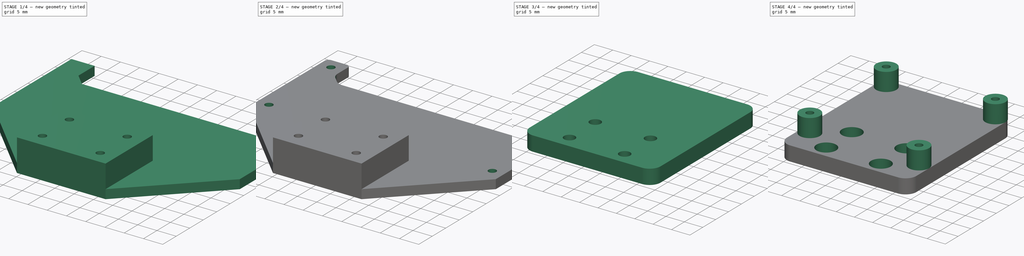
[diagram: build sequence overview — one tinted view per stage of 4, left to right]
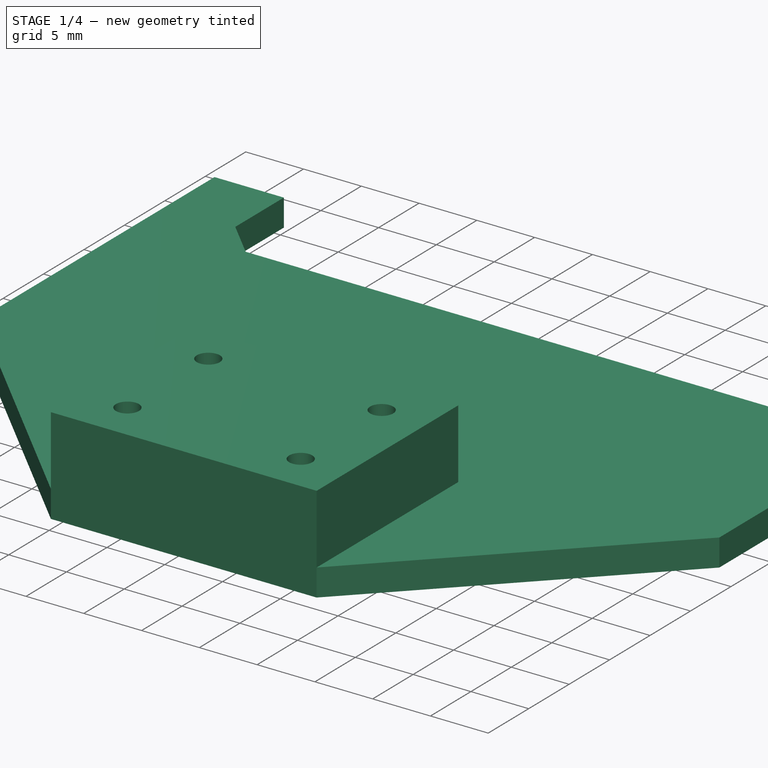
[diagram: stage 1 of 4 — iso view after this stage's code; geometry added in this stage tinted green]
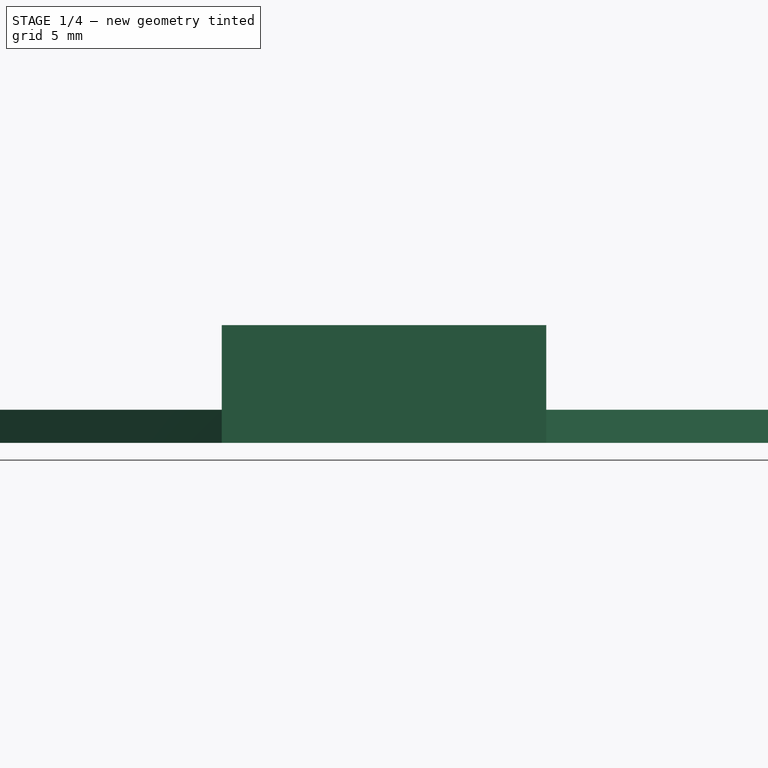
[diagram: stage 1 of 4 — front view after this stage's code; geometry added in this stage tinted green]
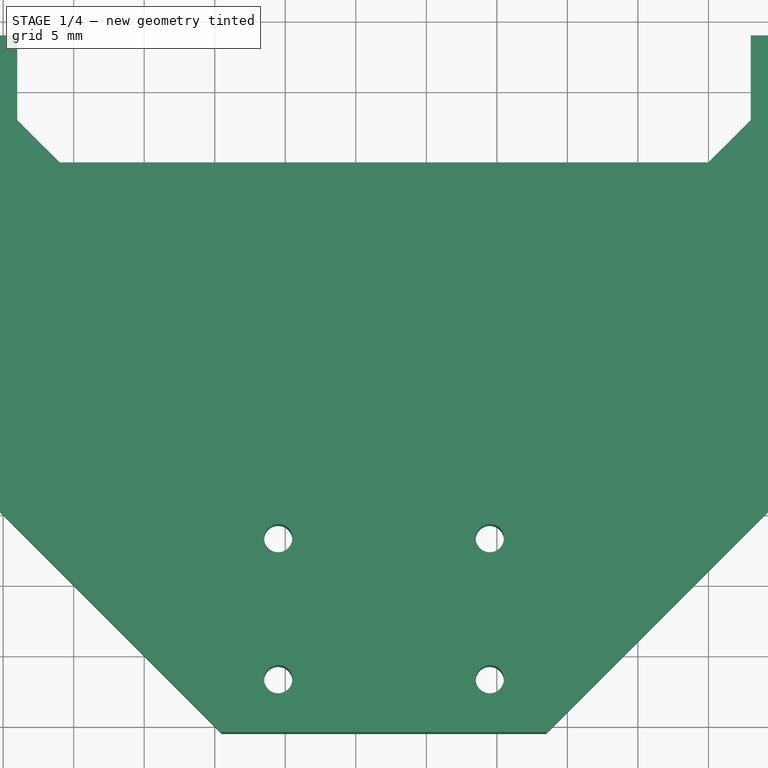
[diagram: stage 1 of 4 — top view after this stage's code; geometry added in this stage tinted green]
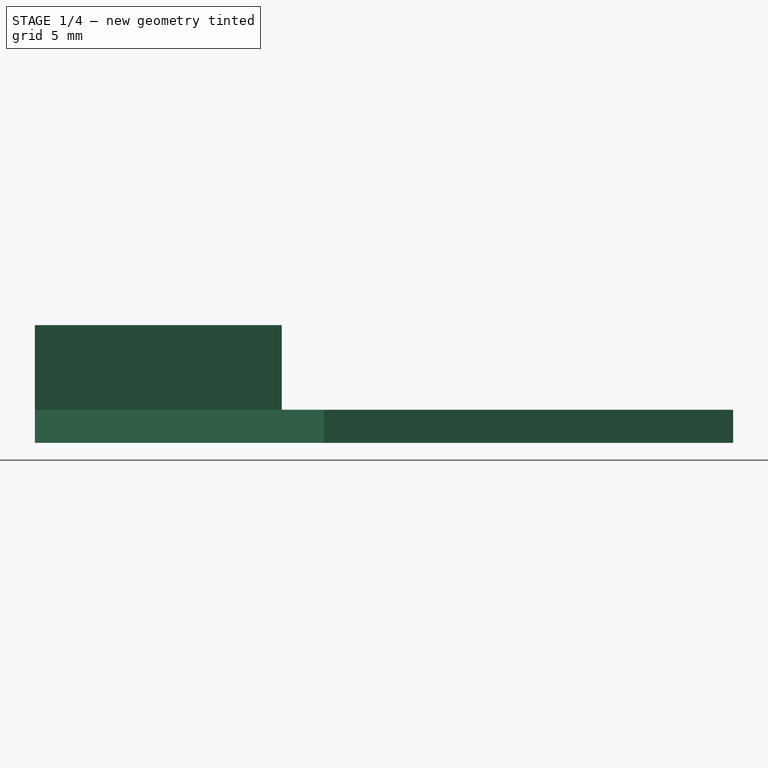
[diagram: stage 1 of 4 — right view after this stage's code; geometry added in this stage tinted green]
FCSTD DOCUMENT  (FreeCAD 0.18.4R)
Label: lensmountbracket
License: All rights reserved
LicenseURL: http://en.wikipedia.org/wiki/All_rights_reserved
objects: Sketcher::SketchObject×9, PartDesign::Fillet×5, PartDesign::Pad×4, PartDesign::Hole×3, PartDesign::Body×2, PartDesign::ShapeBinder×1, PartDesign::Pocket×1
note: 33 computed .brp shape members not serialized (recipe doc carries the construction recipe); baked Part::Feature solids carry a one-line shape summary decoded from their .brp

FEATURE [Sketcher::SketchObject] Sketch  label="basesketch"
  MapMode = 5
  Support = -> [XY_Plane001]
  sketch-geometry (30):
    g0: LineSegment StartX=0 StartY=0 StartZ=0 EndX=0 EndY=29 EndZ=0
    g1: LineSegment StartX=0 StartY=29 StartZ=0 EndX=6 EndY=29 EndZ=0
    g2: LineSegment StartX=6 StartY=29 StartZ=0 EndX=6 EndY=23 EndZ=0
    g3: LineSegment StartX=6 StartY=23 StartZ=0 EndX=9 EndY=20 EndZ=0
    g4: LineSegment StartX=9 StartY=20 StartZ=0 EndX=55 EndY=20 EndZ=0
    g5: LineSegment StartX=55 StartY=20 StartZ=0 EndX=58 EndY=23 EndZ=0
    g6: LineSegment StartX=58 StartY=23 StartZ=0 EndX=58 EndY=29 EndZ=0
    g7: LineSegment StartX=58 StartY=29 StartZ=0 EndX=64 EndY=29 EndZ=0
    g8: LineSegment StartX=64 StartY=29 StartZ=0 EndX=64 EndY=0 EndZ=0
    g9: LineSegment StartX=64 StartY=0 StartZ=0 EndX=43.5 EndY=-20.5 EndZ=0
    g10: LineSegment StartX=43.5 StartY=-20.5 StartZ=0 EndX=20.5 EndY=-20.5 EndZ=0
    g11: LineSegment StartX=20.5 StartY=-20.5 StartZ=0 EndX=0 EndY=0 EndZ=0
    g12: Circle CenterX=3 CenterY=26 CenterZ=0 NormalX=0 NormalY=0 NormalZ=1 AngleXU=0 Radius=3
    g13: Circle CenterX=61 CenterY=26 CenterZ=0 NormalX=0 NormalY=0 NormalZ=1 AngleXU=0 Radius=3
    g14: Circle CenterX=3 CenterY=3 CenterZ=0 NormalX=0 NormalY=0 NormalZ=1 AngleXU=0 Radius=3
    g15: Circle CenterX=61 CenterY=3 CenterZ=0 NormalX=0 NormalY=0 NormalZ=1 AngleXU=0 Radius=3
    g16: Circle CenterX=47 CenterY=17.5 CenterZ=0 NormalX=0 NormalY=0 NormalZ=1 AngleXU=0 Radius=2.8
    g17: Circle CenterX=47 CenterY=-12.5 CenterZ=0 NormalX=0 NormalY=0 NormalZ=1 AngleXU=0 Radius=2.8
    g18: Circle CenterX=17 CenterY=17.5 CenterZ=0 NormalX=0 NormalY=0 NormalZ=1 AngleXU=0 Radius=2.8
    g19: Circle CenterX=17 CenterY=-12.5 CenterZ=0 NormalX=0 NormalY=0 NormalZ=1 AngleXU=0 Radius=2.8
    g20: LineSegment [constr] StartX=17 StartY=17.5 StartZ=0 EndX=47 EndY=-12.5 EndZ=0
    g21: GeomPoint X=32 Y=2.5 Z=0
    g22: LineSegment [constr] StartX=17 StartY=-12.5 StartZ=0 EndX=47 EndY=17.5 EndZ=0
    g23: LineSegment [constr] StartX=3 StartY=26 StartZ=0 EndX=61 EndY=3 EndZ=0
    g24: LineSegment [constr] StartX=3 StartY=3 StartZ=0 EndX=61 EndY=26 EndZ=0
    g25: LineSegment [constr] StartX=32 StartY=2.5 StartZ=0 EndX=32 EndY=14.5 EndZ=0
    g26: LineSegment StartX=61 StartY=3 StartZ=0 EndX=46 EndY=3 EndZ=0
    g27: LineSegment StartX=46 StartY=3 StartZ=0 EndX=46 EndY=-27 EndZ=0
    g28: LineSegment StartX=46 StartY=-27 StartZ=0 EndX=61 EndY=-27 EndZ=0
    g29: LineSegment StartX=61 StartY=-27 StartZ=0 EndX=61 EndY=3 EndZ=0
  constraints (83):
    c: Coincident(g0,g1)
    c: Coincident(g1,g2)
    c: Coincident(g2,g3)
    c: Coincident(g3,g4)
    c: Coincident(g4,g5)
    c: Coincident(g5,g6)
    c: Coincident(g6,g7)
    c: Coincident(g7,g8)
    c: Coincident(g8,g9)
    c: Coincident(g9,g10)
    c: Coincident(g10,g11)
    c: Coincident(g11,g0)
    c: Coincident(g0,g-1)
    c: Vertical(g0)
    c: Vertical(g2)
    c: Vertical(g6)
    c: Vertical(g8)
    c: Horizontal(g1)
    c: Horizontal(g4)
    c: Horizontal(g10)
    c: Horizontal(g7)
    c: Parallel(g3,g11)
    c: Parallel(g5,g9)
    c: Equal(g1,g7)
    c: Angle(g3,g2) = 2.35619
    c: Angle(g6,g5) = 2.35619
    c: Distance(g1) = 6
    c: Horizontal(g13,g12)
    c: Vertical(g14,g12)
    c: Vertical(g13,g15)
    c: Horizontal(g14,g15)
    c: Equal(g15,g13)
    c: Equal(g13,g12)
    c: Equal(g12,g14)
    c: Radius(g12) = 3
    c: Distance(g14,g12) = 23
    c: Distance(g13,g12) = 58
    c: Tangent(g12,g-2)
    c: Tangent(g12,g1)
    c: Tangent(g7,g13)
    c: Tangent(g8,g13)
    c: Tangent(g-1,g14)
    c: Distance(g2) = 6
    c: Equal(g6,g2)
    c: Distance(g5,g4) = 3
    c: PointOnObject(g8,g-1)
    c: Equal(g18,g16)
    c: Equal(g16,g17)
    c: Equal(g17,g19)
    c: Horizontal(g16,g18)
    c: Horizontal(g19,g17)
    c: Vertical(g18,g19)
    c: Vertical(g16,g17)
    c: Distance(g18,g16) = 30
    c: Distance(g17,g16) = 30
    c: Coincident(g18,g20)
    c: Coincident(g20,g17)
    c: PointOnObject(g21,g20)
    c: Coincident(g22,g16)
    c: Coincident(g22,g19)
    c: PointOnObject(g21,g22)
    c: Radius(g18) = 2.8
    c: Vertical(g25)
    c: Coincident(g24,g14)
    c: Coincident(g23,g12)
    c: Coincident(g24,g13)
    c: Coincident(g23,g15)
    c: PointOnObject(g25,g23)
    c: PointOnObject(g25,g24)
    c: Coincident(g21,g25)
    c: Distance(g25) = 12
    c: Coincident(g26,g27)
    c: Coincident(g27,g28)
    c: Coincident(g28,g29)
    c: Coincident(g29,g26)
    c: Horizontal(g26)
    c: Horizontal(g28)
    c: Vertical(g27)
    c: Vertical(g29)
    c: Coincident(g26,g15)
    c: Distance(g26) = 15
    c: Distance(g29) = 30
    c: Distance(g0,g10) = 49.5
FEATURE [Sketcher::SketchObject] Sketch001
  ExternalGeometry = -> [Sketch]
  MapMode = 5
  Support = -> [XY_Plane]
  sketch-geometry (12):
    g0: LineSegment StartX=0 StartY=29 StartZ=0 EndX=6 EndY=29 EndZ=0
    g1: LineSegment StartX=6 StartY=29 StartZ=0 EndX=6 EndY=23 EndZ=0
    g2: LineSegment StartX=6 StartY=23 StartZ=0 EndX=9 EndY=20 EndZ=0
    g3: LineSegment StartX=9 StartY=20 StartZ=0 EndX=55 EndY=20 EndZ=0
    g4: LineSegment StartX=55 StartY=20 StartZ=0 EndX=58 EndY=23 EndZ=0
    g5: LineSegment StartX=58 StartY=23 StartZ=0 EndX=58 EndY=29 EndZ=0
    g6: LineSegment StartX=58 StartY=29 StartZ=0 EndX=64 EndY=29 EndZ=0
    g7: LineSegment StartX=64 StartY=29 StartZ=0 EndX=64 EndY=0 EndZ=0
    g8: LineSegment StartX=64 StartY=0 StartZ=0 EndX=43.5 EndY=-20.5 EndZ=0
    g9: LineSegment StartX=43.5 StartY=-20.5 StartZ=0 EndX=20.5 EndY=-20.5 EndZ=0
    g10: LineSegment StartX=20.5 StartY=-20.5 StartZ=0 EndX=0 EndY=0 EndZ=0
    g11: LineSegment StartX=0 StartY=0 StartZ=0 EndX=0 EndY=29 EndZ=0
  constraints (24):
    c: Coincident(g-4,g0)
    c: Coincident(g0,g-5)
    c: Coincident(g0,g1)
    c: Coincident(g1,g-6)
    c: Coincident(g1,g2)
    c: Coincident(g2,g-7)
    c: Coincident(g2,g3)
    c: Coincident(g3,g-8)
    c: Coincident(g3,g4)
    c: Coincident(g4,g-9)
    c: Coincident(g4,g5)
    c: Coincident(g5,g-10)
    c: Coincident(g5,g6)
    c: Coincident(g6,g-11)
    c: Coincident(g6,g7)
    c: Coincident(g7,g-12)
    c: Coincident(g7,g8)
    c: Coincident(g8,g-13)
    c: Coincident(g8,g9)
    c: Coincident(g9,g-14)
    c: Coincident(g9,g10)
    c: Coincident(g10,g-1)
    c: Coincident(g10,g11)
    c: Coincident(g11,g0)
FEATURE [PartDesign::Pad] Pad
  Length = 2.35
  Length2 = 100
  Profile = -> Sketch001
  Type = 0
FEATURE [Sketcher::SketchObject] Sketch002
  ExternalGeometry = -> [Sketch]
  MapMode = 5
  Placement = pos=(0,0,2.35) rot=(0,0,1;0rad)
  Support = -> [Pad]
  sketch-geometry (4):
    g0: LineSegment StartX=20.5 StartY=-20.5 StartZ=0 EndX=43.5 EndY=-20.5 EndZ=0
    g1: LineSegment StartX=43.5 StartY=-20.5 StartZ=0 EndX=43.5 EndY=-3 EndZ=0
    g2: LineSegment StartX=43.5 StartY=-3 StartZ=0 EndX=20.5 EndY=-3 EndZ=0
    g3: LineSegment StartX=20.5 StartY=-3 StartZ=0 EndX=20.5 EndY=-20.5 EndZ=0
  constraints (10):
    c: Coincident(g0,g1)
    c: Coincident(g1,g2)
    c: Coincident(g2,g3)
    c: Coincident(g3,g0)
    c: Horizontal(g2)
    c: Vertical(g1)
    c: Vertical(g3)
    c: Coincident(g-8,g0)
    c: Coincident(g0,g-8)
    c: DistanceY(g-1,g2) = -3
FEATURE [PartDesign::Pad] Pad001
  BaseFeature = -> Pad
  Length = 6
  Length2 = 100
  Profile = -> Sketch002
  Type = 0
FEATURE [Sketcher::SketchObject] Sketch003
  ExternalGeometry = -> [Sketch,Pad001]
  MapMode = 5
  Placement = pos=(0,0,8.35) rot=(0,0,1;0rad)
  Support = -> [Pad001]
  sketch-geometry (13):
    g0: LineSegment [constr] StartX=24.5 StartY=-16.75 StartZ=0 EndX=39.5 EndY=-16.75 EndZ=0
    g1: LineSegment [constr] StartX=39.5 StartY=-16.75 StartZ=0 EndX=39.5 EndY=-6.75 EndZ=0
    g2: LineSegment [constr] StartX=39.5 StartY=-6.75 StartZ=0 EndX=24.5 EndY=-6.75 EndZ=0
    g3: LineSegment [constr] StartX=24.5 StartY=-6.75 StartZ=0 EndX=24.5 EndY=-16.75 EndZ=0
    g4: LineSegment [constr] StartX=20.5 StartY=-3 StartZ=0 EndX=43.5 EndY=-20.5 EndZ=0
    g5: LineSegment [constr] StartX=43.5 StartY=-3 StartZ=0 EndX=20.5 EndY=-20.5 EndZ=0
    g6: Circle CenterX=39.5 CenterY=-6.75 CenterZ=0 NormalX=0 NormalY=0 NormalZ=1 AngleXU=0 Radius=1.25
    g7: Circle CenterX=39.5 CenterY=-16.75 CenterZ=0 NormalX=0 NormalY=0 NormalZ=1 AngleXU=0 Radius=1.25
    g8: Circle CenterX=24.5 CenterY=-16.75 CenterZ=0 NormalX=0 NormalY=0 NormalZ=1 AngleXU=0 Radius=1.25
    g9: Circle CenterX=24.5 CenterY=-6.75 CenterZ=0 NormalX=0 NormalY=0 NormalZ=1 AngleXU=0 Radius=1.25
    g10: LineSegment [constr] StartX=24.5 StartY=-6.75 StartZ=0 EndX=39.5 EndY=-16.75 EndZ=0
    g11: LineSegment [constr] StartX=24.5 StartY=-16.75 StartZ=0 EndX=39.5 EndY=-6.75 EndZ=0
    g12: GeomPoint X=32 Y=-11.75 Z=0
  constraints (30):
    c: Coincident(g0,g1)
    c: Coincident(g1,g2)
    c: Coincident(g2,g3)
    c: Coincident(g3,g0)
    c: Horizontal(g0)
    c: Horizontal(g2)
    c: Vertical(g1)
    c: Vertical(g3)
    c: Coincident(g-10,g5)
    c: Coincident(g-8,g4)
    c: Coincident(g-9,g5)
    c: Coincident(g4,g-10)
    c: Coincident(g6,g1)
    c: Coincident(g7,g0)
    c: Coincident(g8,g0)
    c: Coincident(g9,g2)
    c: Equal(g8,g7)
    c: Equal(g7,g6)
    c: Equal(g6,g9)
    c: Radius(g9) = 1.25
    c: Distance(g1) = 10
    c: Distance(g2) = 15
    c: Coincident(g10,g9)
    c: Coincident(g10,g7)
    c: Coincident(g11,g8)
    c: Coincident(g11,g6)
    c: PointOnObject(g12,g10)
    c: PointOnObject(g12,g11)
    c: PointOnObject(g12,g5)
    c: PointOnObject(g12,g4)
FEATURE [PartDesign::Hole] Hole
  BaseFeature = -> Pad001
  Depth = 25
  DepthType = 1
  Diameter = 2
  DrillPoint = 1
  DrillPointAngle = 118
  HoleCutCountersinkAngle = 90
  HoleCutDepth = 0
  HoleCutDiameter = 0
  HoleCutType = 0
  ModelActualThread = false
  Profile = -> Sketch003
  Tapered = false
  TaperedAngle = 90
  ThreadAngle = 0
  ThreadClass = 0
  ThreadCutOffInner = 0
  ThreadCutOffOuter = 0
  ThreadDirection = 0
  ThreadFit = 0
  ThreadPitch = 0
  ThreadSize = 0
  ThreadType = 0
  Threaded = false
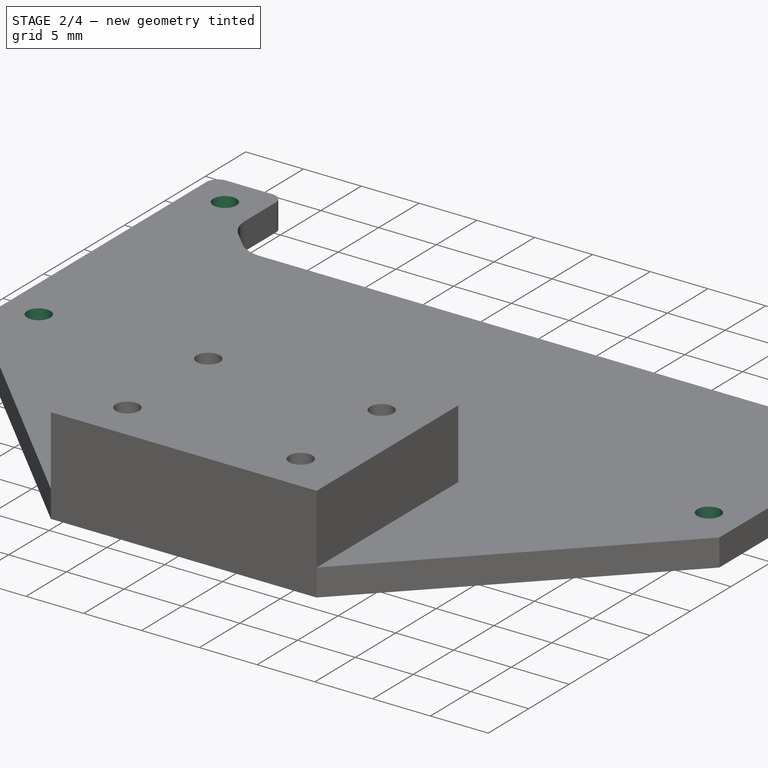
[diagram: stage 2 of 4 — iso view after this stage's code; geometry added in this stage tinted green]
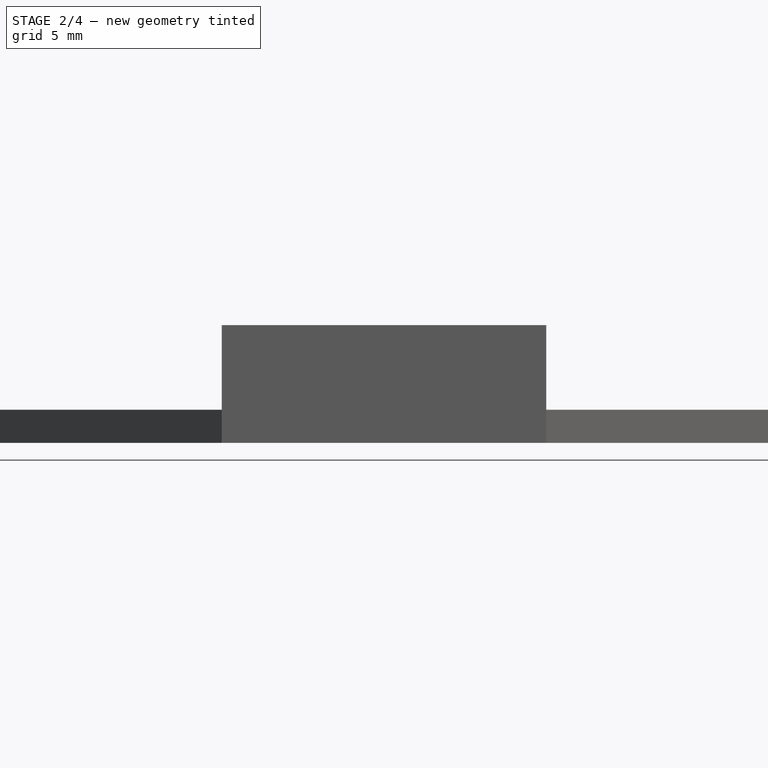
[diagram: stage 2 of 4 — front view after this stage's code; geometry added in this stage tinted green]
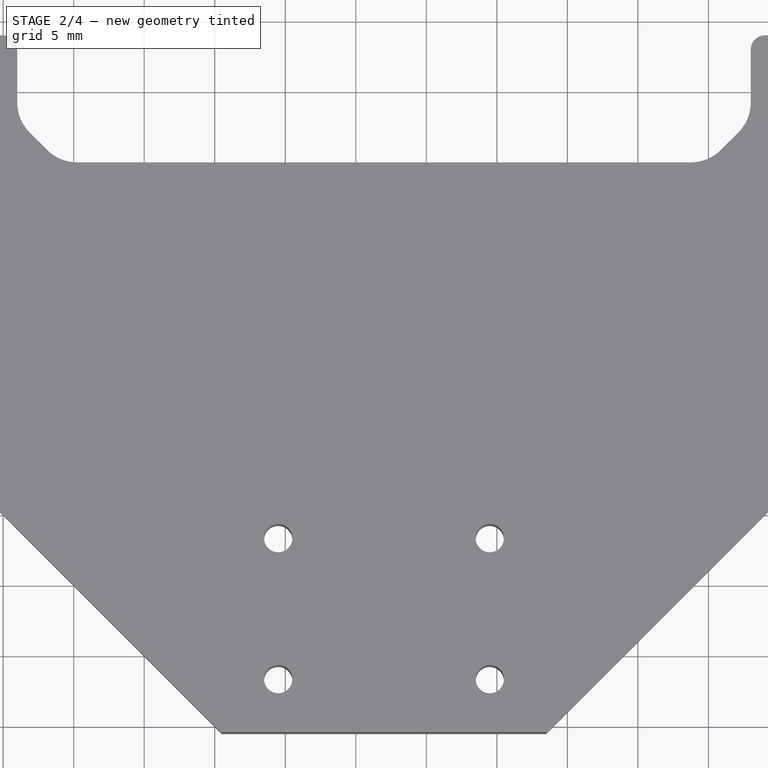
[diagram: stage 2 of 4 — top view after this stage's code; geometry added in this stage tinted green]
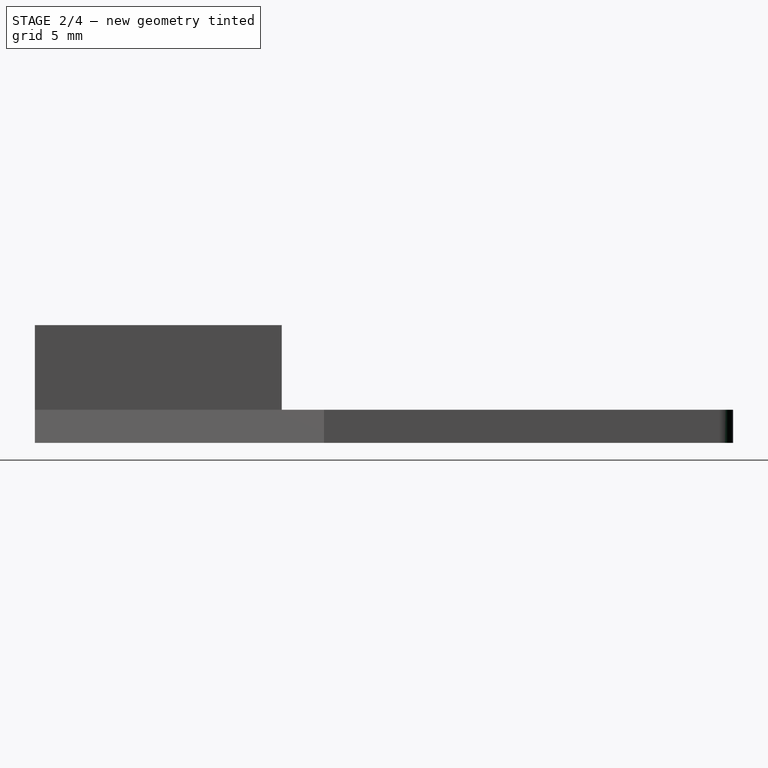
[diagram: stage 2 of 4 — right view after this stage's code; geometry added in this stage tinted green]
FEATURE [Sketcher::SketchObject] Sketch004
  ExternalGeometry = -> [Sketch]
  MapMode = 5
  Placement = pos=(0,0,2.35) rot=(0,0,1;0rad)
  Support = -> [Hole]
  sketch-geometry (4):
    g0: Circle CenterX=3 CenterY=26 CenterZ=0 NormalX=0 NormalY=0 NormalZ=1 AngleXU=0 Radius=1.25
    g1: Circle CenterX=3 CenterY=3 CenterZ=0 NormalX=0 NormalY=0 NormalZ=1 AngleXU=0 Radius=1.25
    g2: Circle CenterX=61 CenterY=3 CenterZ=0 NormalX=0 NormalY=0 NormalZ=1 AngleXU=0 Radius=1.25
    g3: Circle CenterX=61 CenterY=26 CenterZ=0 NormalX=0 NormalY=0 NormalZ=1 AngleXU=0 Radius=1.25
  constraints (8):
    c: Coincident(g0,g-3)
    c: Coincident(g1,g-4)
    c: Coincident(g2,g-5)
    c: Coincident(g3,g-6)
    c: Equal(g3,g2)
    c: Equal(g2,g0)
    c: Equal(g0,g1)
    c: Radius(g0) = 1.25
FEATURE [PartDesign::Hole] Hole001
  BaseFeature = -> Hole
  Depth = 25
  DepthType = 0
  Diameter = 2
  DrillPoint = 1
  DrillPointAngle = 118
  HoleCutCountersinkAngle = 90
  HoleCutDepth = 0
  HoleCutDiameter = 0
  HoleCutType = 0
  ModelActualThread = false
  Profile = -> Sketch004
  Tapered = false
  TaperedAngle = 90
  ThreadAngle = 0
  ThreadClass = 0
  ThreadCutOffInner = 0
  ThreadCutOffOuter = 0
  ThreadDirection = 0
  ThreadFit = 0
  ThreadPitch = 0
  ThreadSize = 0
  ThreadType = 0
  Threaded = false
FEATURE [PartDesign::Fillet] Fillet
  Base = -> Hole001 [Edge2,Edge1,Edge51,Edge50]
  BaseFeature = -> Hole001
  Radius = 1
FEATURE [PartDesign::Fillet] Fillet001
  Base = -> Fillet [Edge52,Edge54,Edge57,Edge59]
  BaseFeature = -> Fillet
  Radius = 3
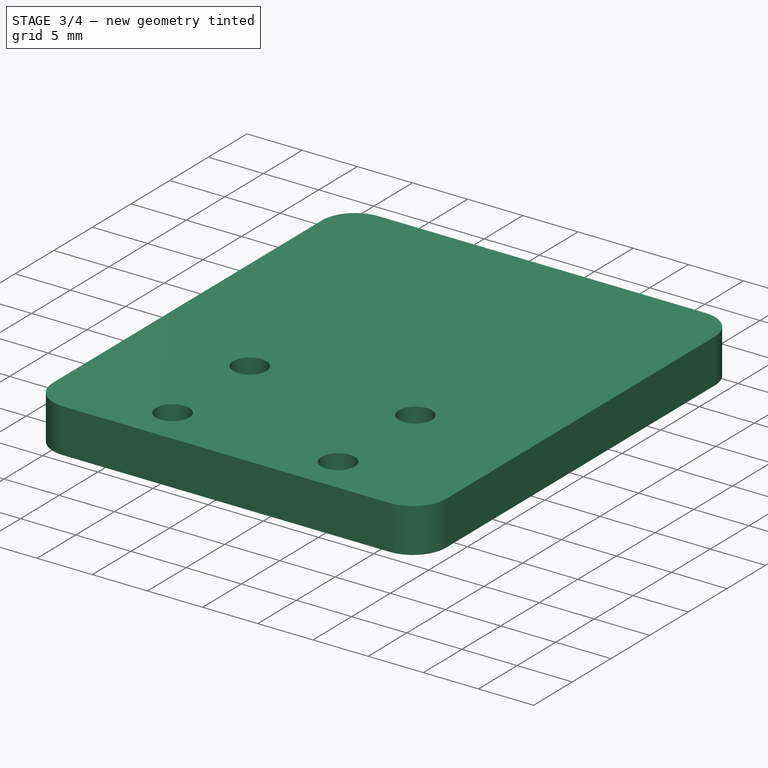
[diagram: stage 3 of 4 — iso view after this stage's code; geometry added in this stage tinted green]
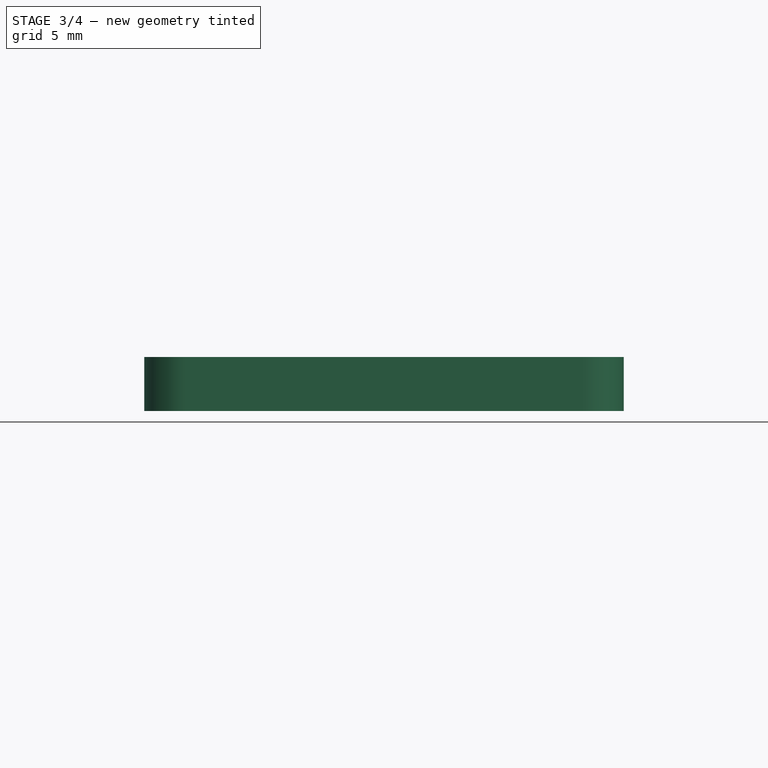
[diagram: stage 3 of 4 — front view after this stage's code; geometry added in this stage tinted green]
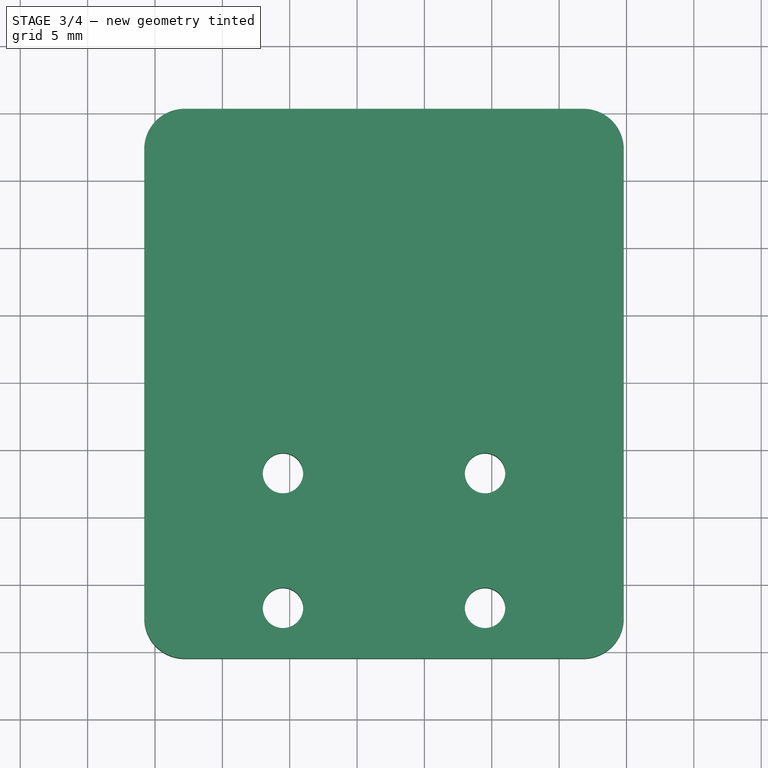
[diagram: stage 3 of 4 — top view after this stage's code; geometry added in this stage tinted green]
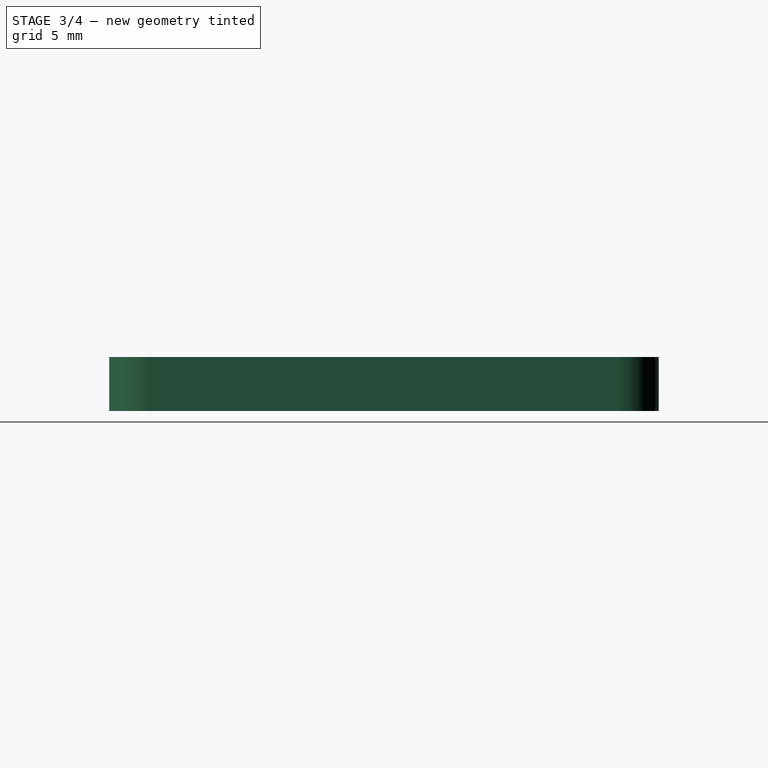
[diagram: stage 3 of 4 — right view after this stage's code; geometry added in this stage tinted green]
FEATURE [PartDesign::Fillet] Fillet002
  Base = -> Fillet001 [Edge46,Edge58]
  BaseFeature = -> Fillet001
  Radius = 6
FEATURE [PartDesign::Fillet] Fillet003
  Base = -> Fillet002 [Edge100,Edge101]
  BaseFeature = -> Fillet002
  Radius = 2
FEATURE [PartDesign::Body] Body  label="body-piside"
  Group = -> [Sketch001,Pad,Sketch002,Pad001,Sketch003,Hole,Sketch004,Hole001,Fillet,Fillet001,Fillet002,Fillet003]
  Origin = -> Origin
  Tip = -> Fillet003
FEATURE [PartDesign::ShapeBinder] ReferenceFillet003
  Support = -> [Fillet003]
  TraceSupport = false
FEATURE [Sketcher::SketchObject] Sketch005
  ExternalGeometry = -> [ReferenceFillet003,Sketch]
  MapMode = 5
  Placement = pos=(0,0,8.35) rot=(0,0,1;0rad)
  Support = -> [ReferenceFillet003]
  sketch-geometry (8):
    g0: Circle CenterX=24.5 CenterY=-6.75 CenterZ=0 NormalX=0 NormalY=0 NormalZ=1 AngleXU=0 Radius=1.5
    g1: Circle CenterX=39.5 CenterY=-6.75 CenterZ=0 NormalX=0 NormalY=0 NormalZ=1 AngleXU=0 Radius=1.5
    g2: Circle CenterX=39.5 CenterY=-16.75 CenterZ=0 NormalX=0 NormalY=0 NormalZ=1 AngleXU=0 Radius=1.5
    g3: Circle CenterX=24.5 CenterY=-16.75 CenterZ=0 NormalX=0 NormalY=0 NormalZ=1 AngleXU=0 Radius=1.5
    g4: LineSegment StartX=14.2 StartY=20.3 StartZ=0 EndX=49.8 EndY=20.3 EndZ=0
    g5: LineSegment StartX=49.8 StartY=20.3 StartZ=0 EndX=49.8 EndY=-20.5 EndZ=0
    g6: LineSegment StartX=49.8 StartY=-20.5 StartZ=0 EndX=14.2 EndY=-20.5 EndZ=0
    g7: LineSegment StartX=14.2 StartY=-20.5 StartZ=0 EndX=14.2 EndY=20.3 EndZ=0
  constraints (20):
    c: Coincident(g0,g-8)
    c: Coincident(g1,g-7)
    c: Coincident(g2,g-10)
    c: Coincident(g3,g-9)
    c: Equal(g3,g0)
    c: Equal(g0,g1)
    c: Equal(g1,g2)
    c: Radius(g0) = 1.5
    c: Coincident(g4,g5)
    c: Coincident(g5,g6)
    c: Coincident(g6,g7)
    c: Coincident(g7,g4)
    c: Horizontal(g4)
    c: Horizontal(g6)
    c: Vertical(g5)
    c: Vertical(g7)
    c: Tangent(g7,g-11)
    c: Tangent(g4,g-11)
    c: PointOnObject(g-4,g6)
    c: Tangent(g5,g-12)
FEATURE [PartDesign::Pad] Pad002
  Length = 4
  Length2 = 100
  Profile = -> Sketch005
  Type = 0
FEATURE [PartDesign::Fillet] Fillet004
  Base = -> Pad002 [Edge8,Edge5,Edge2,Edge1]
  BaseFeature = -> Pad002
  Radius = 3
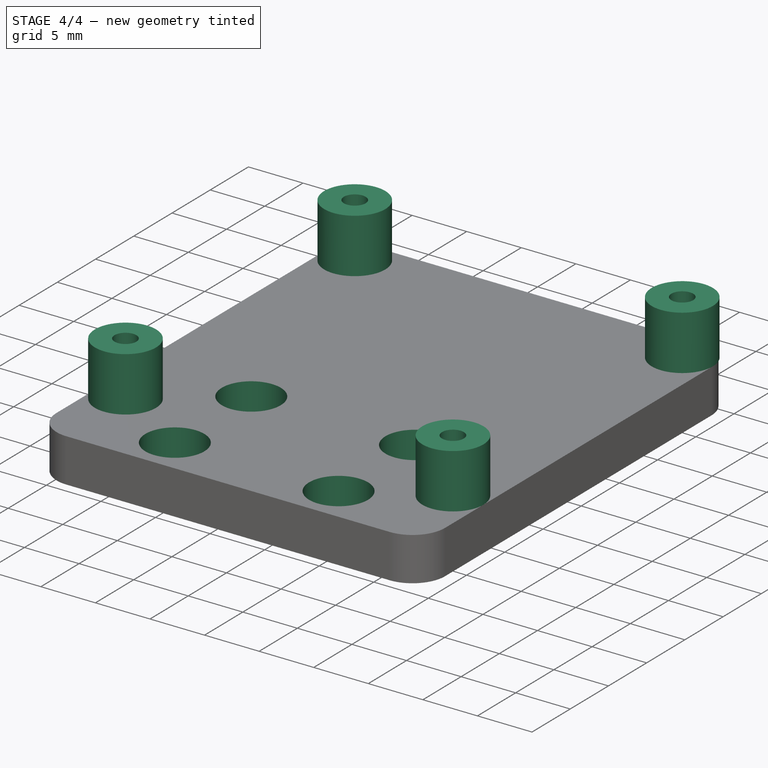
[diagram: stage 4 of 4 — iso view after this stage's code; geometry added in this stage tinted green]
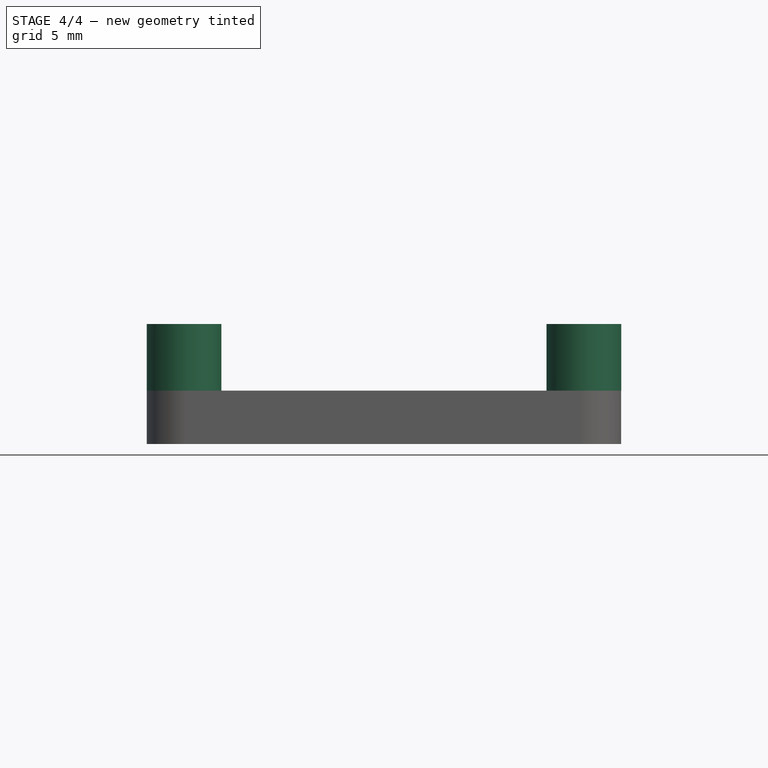
[diagram: stage 4 of 4 — front view after this stage's code; geometry added in this stage tinted green]
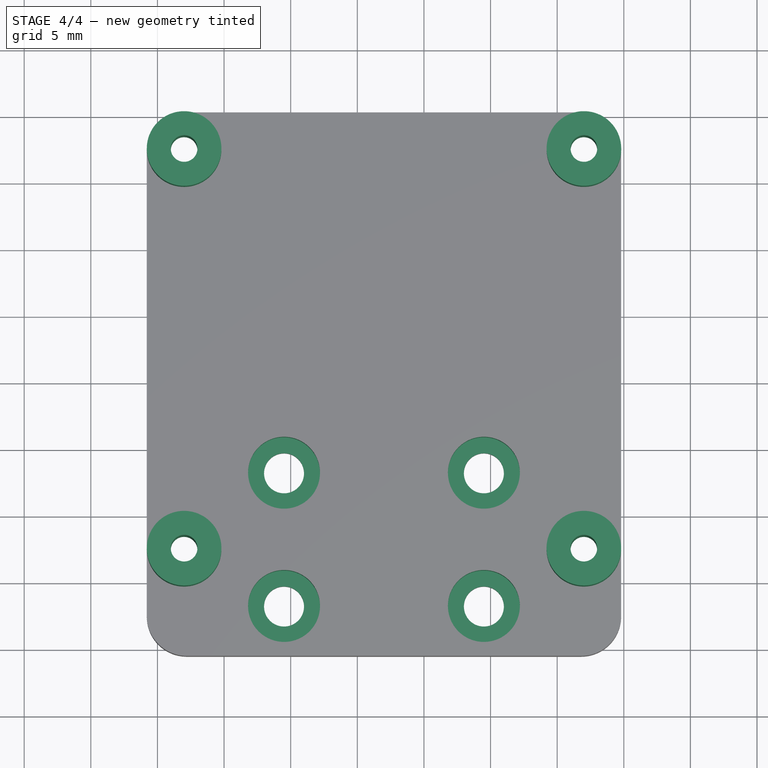
[diagram: stage 4 of 4 — top view after this stage's code; geometry added in this stage tinted green]
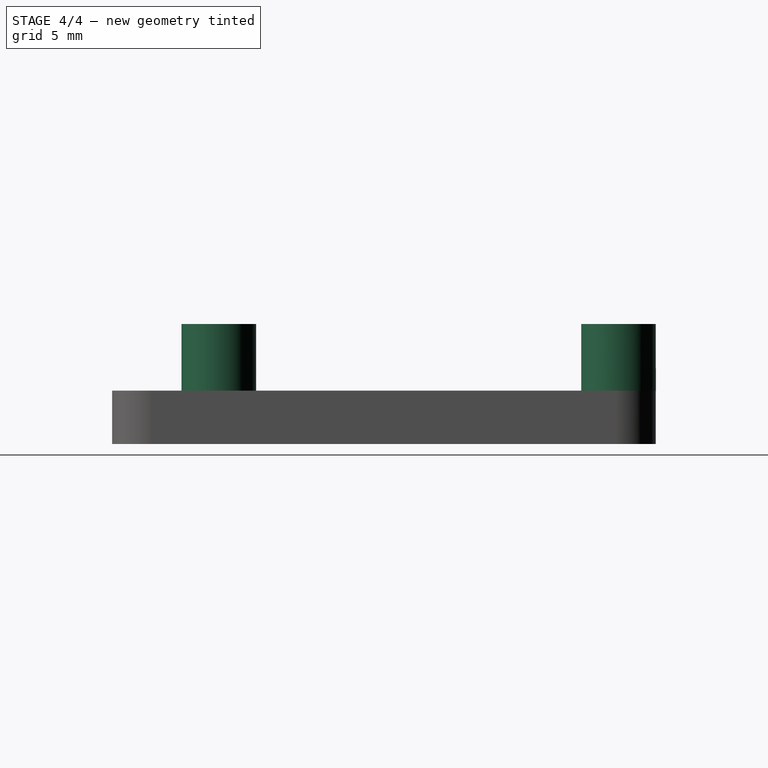
[diagram: stage 4 of 4 — right view after this stage's code; geometry added in this stage tinted green]
FEATURE [Sketcher::SketchObject] Sketch006
  ExternalGeometry = -> [Sketch]
  MapMode = 5
  Placement = pos=(0,0,12.35) rot=(0,0,1;0rad)
  Support = -> [Fillet004]
  sketch-geometry (4):
    g0: Circle CenterX=17 CenterY=17.5 CenterZ=0 NormalX=0 NormalY=0 NormalZ=1 AngleXU=0 Radius=2.8
    g1: Circle CenterX=47.0061 CenterY=17.5009 CenterZ=0 NormalX=0 NormalY=0 NormalZ=1 AngleXU=0 Radius=2.8
    g2: Circle CenterX=47 CenterY=-12.5 CenterZ=0 NormalX=0 NormalY=0 NormalZ=1 AngleXU=0 Radius=2.8
    g3: Circle CenterX=17 CenterY=-12.5 CenterZ=0 NormalX=0 NormalY=0 NormalZ=1 AngleXU=0 Radius=2.8
  constraints (7):
    c: Coincident(g0,g-3)
    c: Coincident(g2,g-6)
    c: Coincident(g3,g-5)
    c: Equal(g0,g1)
    c: Equal(g1,g2)
    c: Equal(g2,g3)
    c: Equal(g0,g-3)
FEATURE [PartDesign::Pad] Pad003
  BaseFeature = -> Fillet004
  Length = 5
  Length2 = 100
  Profile = -> Sketch006
  Type = 0
FEATURE [Sketcher::SketchObject] Sketch007
  ExternalGeometry = -> [Pad003]
  MapMode = 5
  Placement = pos=(0,0,12.35) rot=(0,0,1;0rad)
  Support = -> [Pad003]
  sketch-geometry (4):
    g0: Circle CenterX=24.5 CenterY=-6.75 CenterZ=0 NormalX=0 NormalY=0 NormalZ=1 AngleXU=0 Radius=2.7
    g1: Circle CenterX=39.5 CenterY=-6.75 CenterZ=0 NormalX=0 NormalY=0 NormalZ=1 AngleXU=0 Radius=2.7
    g2: Circle CenterX=39.5 CenterY=-16.75 CenterZ=0 NormalX=0 NormalY=0 NormalZ=1 AngleXU=0 Radius=2.7
    g3: Circle CenterX=24.5 CenterY=-16.75 CenterZ=0 NormalX=0 NormalY=0 NormalZ=1 AngleXU=0 Radius=2.7
  constraints (8):
    c: Coincident(g0,g-3)
    c: Coincident(g1,g-4)
    c: Coincident(g2,g-5)
    c: Coincident(g3,g-6)
    c: Equal(g0,g3)
    c: Equal(g3,g2)
    c: Equal(g2,g1)
    c: Radius(g0) = 2.7
FEATURE [PartDesign::Pocket] Pocket
  BaseFeature = -> Pad003
  Length = 2.6
  Length2 = 100
  Profile = -> Sketch007
  Type = 0
FEATURE [Sketcher::SketchObject] Sketch008
  ExternalGeometry = -> [Pocket]
  MapMode = 5
  Placement = pos=(0,0,17.35) rot=(0,0,1;0rad)
  Support = -> [Pocket]
  sketch-geometry (4):
    g0: Circle CenterX=17 CenterY=17.5 CenterZ=0 NormalX=0 NormalY=0 NormalZ=1 AngleXU=0 Radius=1.25
    g1: Circle CenterX=47.0061 CenterY=17.5009 CenterZ=0 NormalX=0 NormalY=0 NormalZ=1 AngleXU=0 Radius=1.25
    g2: Circle CenterX=47 CenterY=-12.5 CenterZ=0 NormalX=0 NormalY=0 NormalZ=1 AngleXU=0 Radius=1.25
    g3: Circle CenterX=17 CenterY=-12.5 CenterZ=0 NormalX=0 NormalY=0 NormalZ=1 AngleXU=0 Radius=1.25
  constraints (8):
    c: Coincident(g0,g-3)
    c: Coincident(g1,g-4)
    c: Coincident(g2,g-5)
    c: Coincident(g3,g-6)
    c: Equal(g0,g1)
    c: Equal(g1,g2)
    c: Equal(g2,g3)
    c: Radius(g0) = 1.25
FEATURE [PartDesign::Hole] Hole002
  BaseFeature = -> Pocket
  Depth = 25
  DepthType = 0
  Diameter = 2
  DrillPoint = 1
  DrillPointAngle = 118
  HoleCutCountersinkAngle = 90
  HoleCutDepth = 0
  HoleCutDiameter = 0
  HoleCutType = 0
  ModelActualThread = false
  Profile = -> Sketch008
  Tapered = false
  TaperedAngle = 90
  ThreadAngle = 0
  ThreadClass = 0
  ThreadCutOffInner = 0
  ThreadCutOffOuter = 0
  ThreadDirection = 0
  ThreadFit = 0
  ThreadPitch = 0
  ThreadSize = 0
  ThreadType = 0
  Threaded = false
FEATURE [PartDesign::Body] Body001  label="body-camside"
  Group = -> [ReferenceFillet003,Sketch005,Pad002,Fillet004,Sketch006,Pad003,Sketch007,Pocket,Sketch008,Hole002]
  Origin = -> Origin001
  Tip = -> Hole002
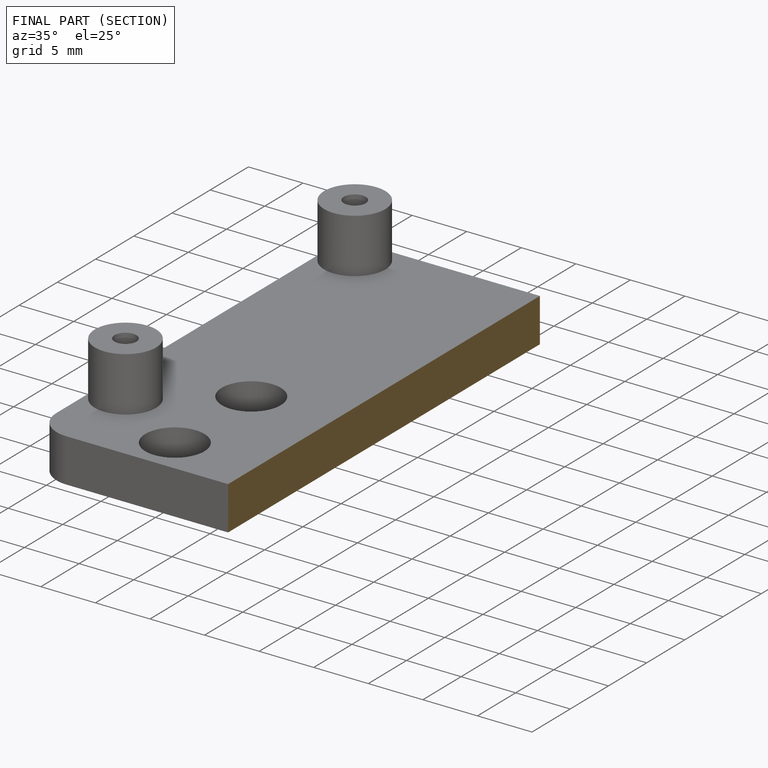
[diagram: finished part — half-section view (interior)]
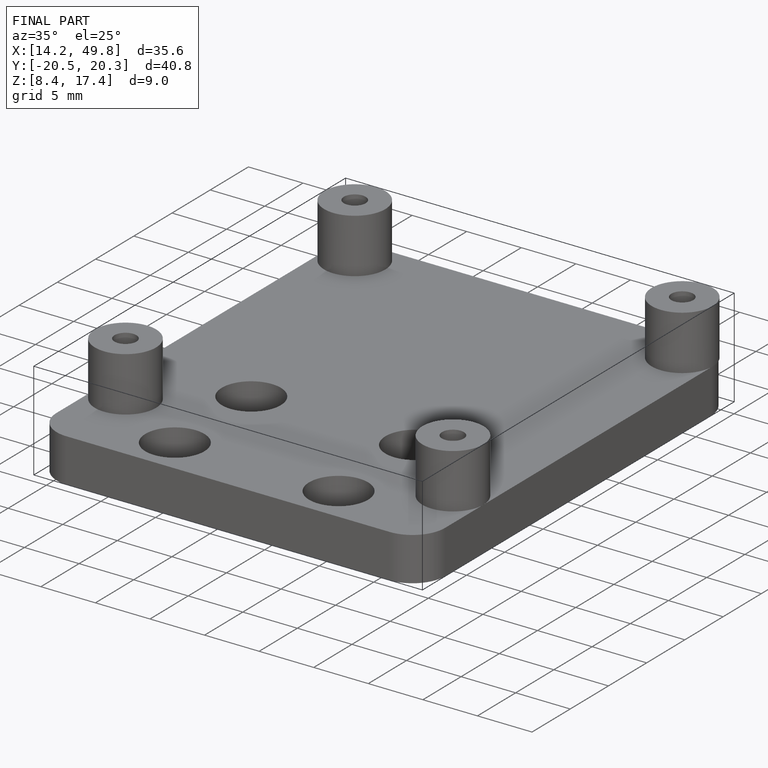
[diagram: finished part — iso view with bounding-box wireframe]
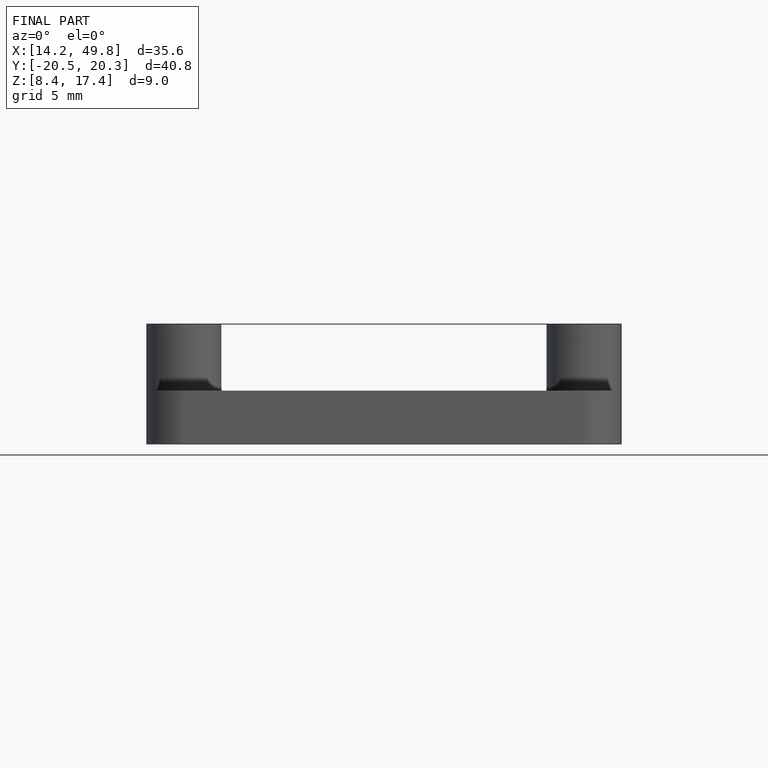
[diagram: finished part — front view with bounding-box wireframe]
